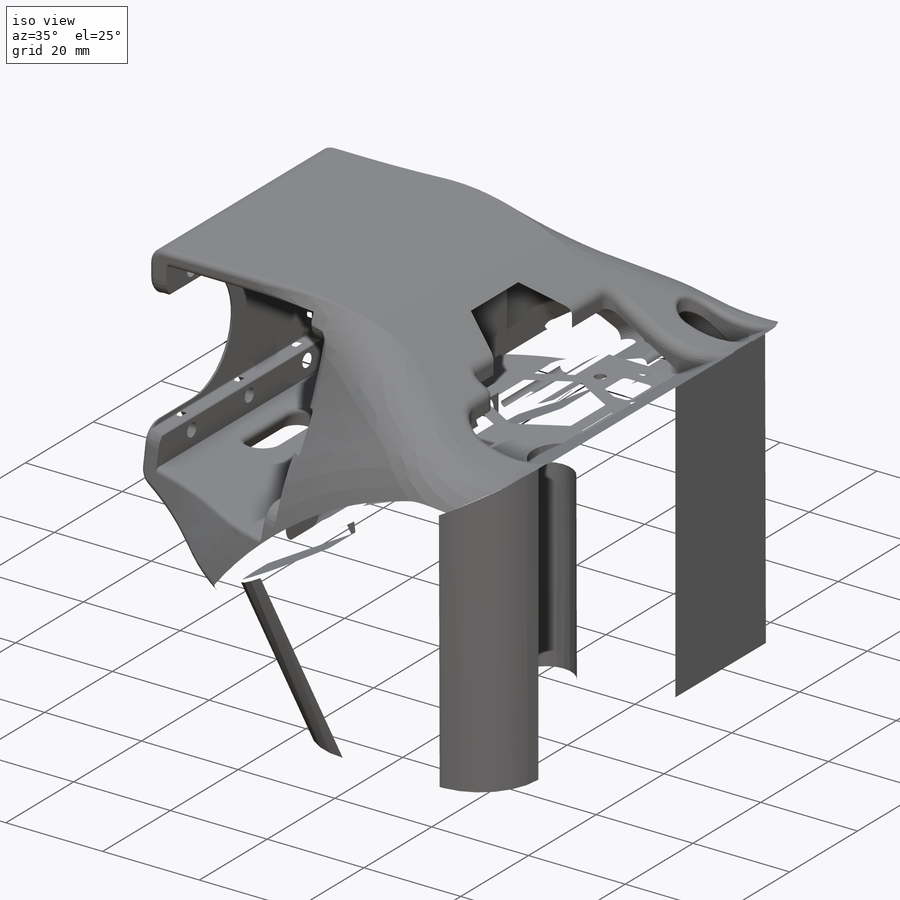
[diagram: iso view]
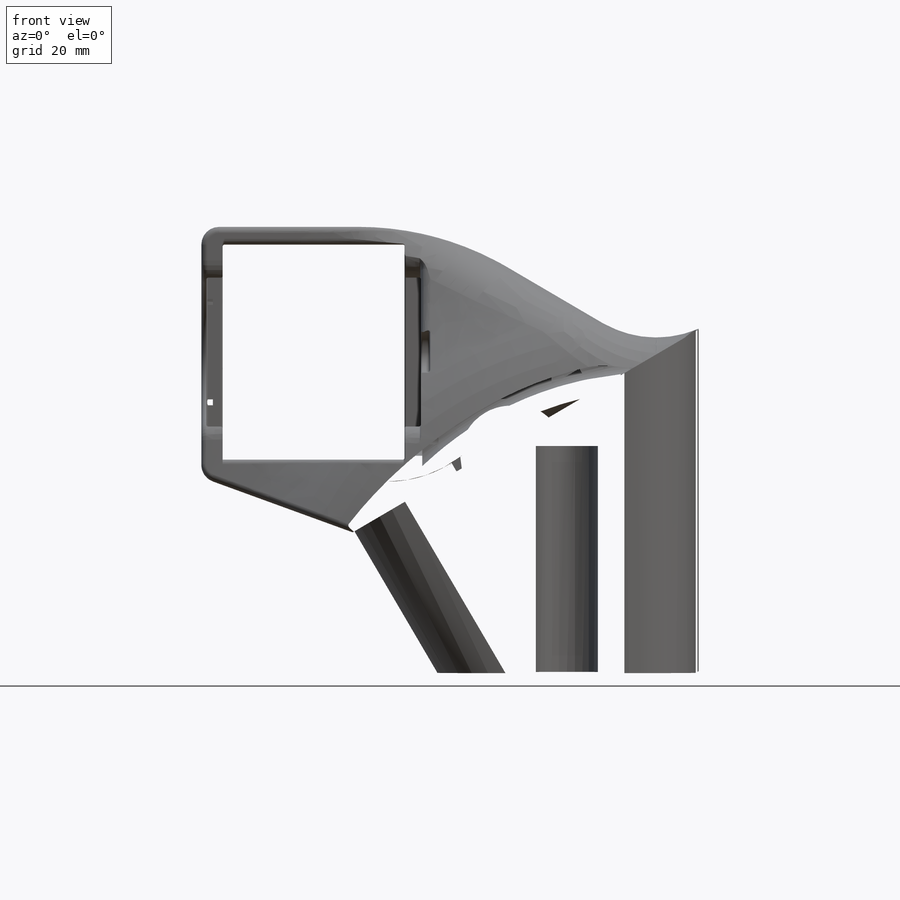
[diagram: front view]
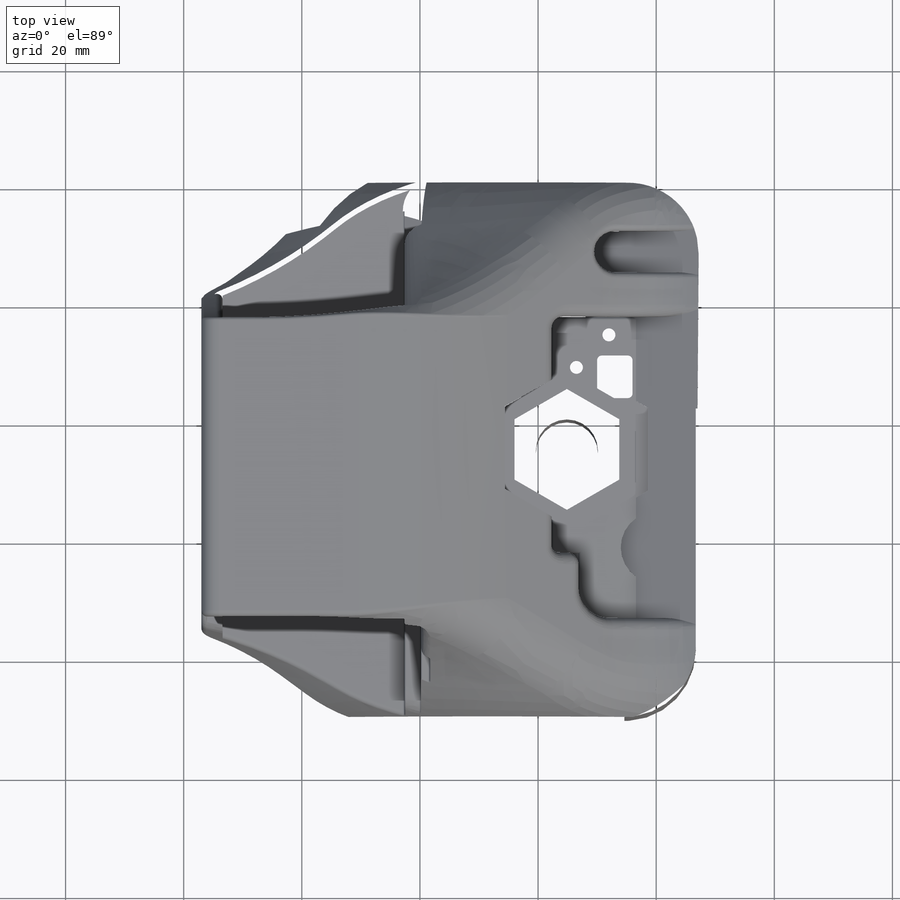
[diagram: top view]
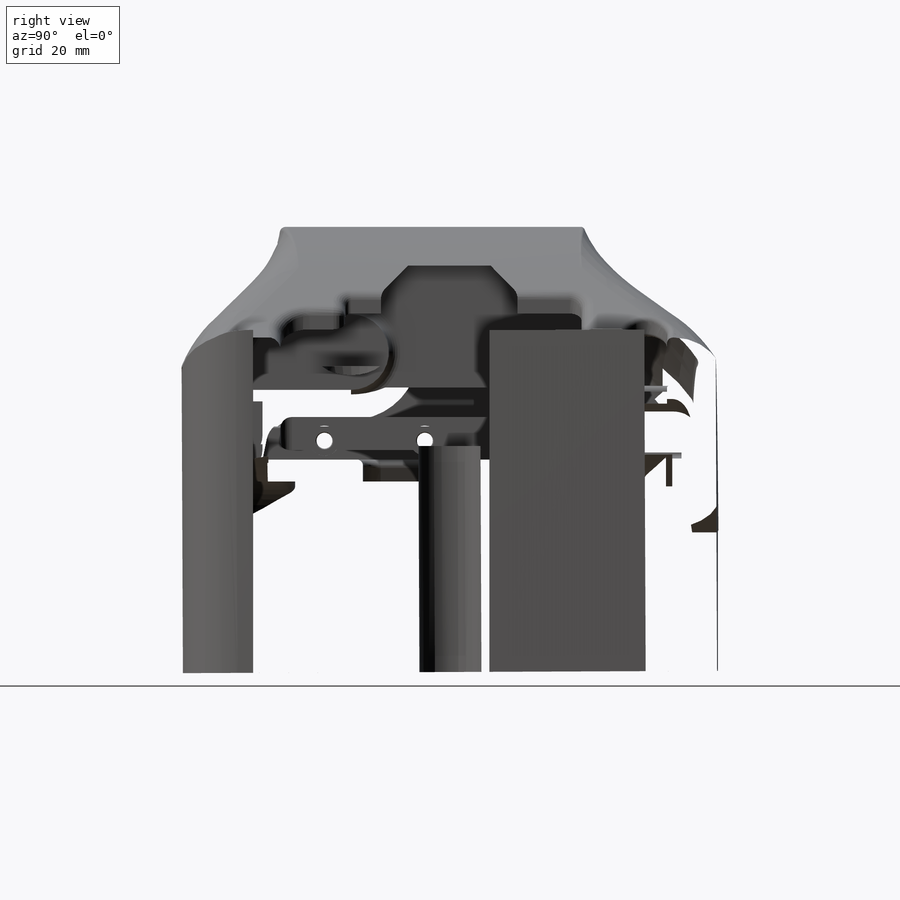
[diagram: right view]
SOLIDWORKS PART (.sldprt)
format: sldprt  version: not decoded by parser v0  size: 17,170,432 bytes
history: native  units: mm
features: sketch x69, fillet x53, cut_extrude x39, plane x23, extrude x11, chamfer x5, hole x4, boolean_combine x2, mirror x2, move_body x2, delete_body x2, material x1, revolve x1, shell x1 + 5 further entries (+21 scaffold rows collapsed; 10 parser-record rows omitted)
feature tree (251):
  scaffold x21  (default folders/planes/origin — collapsed)
  material  "Polyamide"
  plane  "Plan de face"
  plane  "Plan de dessus"
  plane  "Plan de droite"
  plane  "Plan FR07"  Offset=88.5mm
  plane  "Limite Rotation"  Offset=42.8mm
  plane  "Plan MoteurCou"  Offset=4mm
  "Axe2"
  plane  "Plan Rotation Sagittal"
  "Axe3"
  plane  "Plan Moteur Bras"  Offset=67mm
  plane  "PlanMoteruBras2"  Offset=73mm
  sketch  "Esquisse26"  dims[D1=35.4mm D2=1.0mm D3=12.0mm D4=26.3mm D5=39.0mm]
  parser-record x10  (decoder bookkeeping rows leaked as tree rows — omitted from the tree; the rows remain in map.json)
  sketch  "Esquisse4"  dims[D1=2.0mm D2=3.0mm D3=11.5mm]
  revolve  "Révolution2"  Angle=100deg
  sketch  "Esquisse10"  dims[D1=30.0mm D2=35.5mm D3=24.4mm D4=35.6mm D5=0.4mm]
  plane  "Plan10"
  plane  "EpaisseurCote"  Offset=4mm
  sketch  "Esquisse12"  dims[D1=23.0mm D2=17.8mm]
  sketch  "Esquisse5"  dims[c1.D1=1.5mm c1.D2=1.5mm c2.D1=3.0mm c2.D2=3.0mm c2.D3=12.0mm c2.D4=50.6mm c3.D1=3.0mm c3.D2=3.0mm]
  sketch  "Esquisse11"  dims[D1=23.0mm]
  cut_extrude  "Enlèv. mat.-Extru.3"  [1 undecoded]
  extrude  "Boss.-Extru.8"  Depth=3mm
  sketch  "Esquisse3D4"
  chamfer  "Chanfrein5"  Distance=3mm Angle=45deg
  boolean_combine  "Combiner3"
  sketch  "Esquisse3D5"
  fillet  "Congé3"  Radius=50mm
  fillet  "Congé4"  Radius=50mm
  fillet  "Congé5"  Radius=30mm
  cut_extrude  "Enlèv. mat.-Extru.4"  Depth=33.3mm
  sketch  "Esquisse49"  dims[D1=6.0mm D2=1.5mm D3=0.4mm]
  sketch  "Esquisse17"
  cut_extrude  "Enlèv. mat.-Extru.6"  [1 undecoded]
  cut_extrude  "Enlèv. mat.-Extru.5"  Depth=13mm
  cut_extrude  "Enlèv. mat.-Extru.11"  [1 undecoded]
  sketch  "Esquisse50"
  cut_extrude  "Enlèv. mat.-Extru.23"  [1 undecoded]
  sketch  "Esquisse15"  dims[D8=2.7mm D1=2.8mm D2=30.0mm D3=4.5mm D4=17.0mm D5=17.0mm D6=17.0mm D7=40.3mm]
  sketch  "Esquisse27"  dims[D1=4.0mm D2=15.0mm D3=26.0mm]
  cut_extrude  "Enlèv. mat.-Extru.12"  Depth=6mm
  plane  "Plan15"  Offset=10mm
  shell  "Coque12"  Thickness=3mm
  chamfer  "Chanfrein6"  Distance=10mm Angle=48deg
  chamfer  "Chanfrein2"  Distance=8mm Angle=52deg
  chamfer  "Chanfrein3"  Distance=5mm Angle=56deg
  fillet  "Congé58"  Radius=32mm
  fillet  "Congé59"  Radius=4mm
  fillet  "Congé27"  Radius=4mm
  fillet  "Congé60"  Radius=2mm
  fillet  "Congé61"  Radius=2mm
  plane  "Plan16"  Offset=10mm
  fillet  "Congé13"  Radius=3mm
  fillet  "Congé16"  Radius=4mm
  fillet  "Congé18"  Radius=1mm
  fillet  "Congé19"  Radius=5mm
  fillet  "Congé20"  Radius=1mm
  fillet  "Congé15"  Radius=0.3mm
  fillet  "Congé17"  Radius=2mm
  hole  "Chambrage pour vis à tête hexagonale M2.52"  Diameter=2.7mm Depth=15mm
  sketch  "Esquisse14"
  sketch  "Esquisse13"  dims[hole-wizard template sketch: 27 standard entries collapsed; hole parameters kept: c8.Profondeur du perçage=15.0mm c8.Diamètre du chambrage=5.1mm c8.Profondeur du chambrage=8.35mm c8.Diamètre du fraisage milieu=3.0mm c8.D6=~5.388154mm c8.Angle du fraisage milieu=90.0deg c8.D7=~14.816244mm c8.Angle de pointe=118.0deg]
  hole  "Chambrage pour vis à tête hexagonale M2.51"  Diameter=2.7mm Depth=15mm
  sketch  "Esquisse19"
  sketch  "Esquisse18"  dims[hole-wizard template sketch: 27 standard entries collapsed; hole parameters kept: c8.Profondeur du perçage=15.0mm c8.Diamètre du chambrage=5.1mm c8.Profondeur du chambrage=8.35mm c8.Diamètre du fraisage milieu=3.0mm c8.D6=~5.388154mm c8.Angle du fraisage milieu=90.0deg c8.D7=~14.816244mm c8.Angle de pointe=118.0deg]
  fillet  "Congé29"  Radius=2mm
  sketch  "Esquisse52"
  sketch  "Esquisse34"  dims[c1.D1=5.0mm c1.D2=13.0mm c1.D3=1.5mm c1.D4=5.0mm c2.D1=1.2mm c2.D3=6.0mm]
  cut_extrude  "Enlèv. mat.-Extru.14"  [1 undecoded]
  sketch  "Esquisse45"  dims[D1=12.0mm D2=6.0mm D3=5.0mm D4=5.0mm]
  sketch  "Esquisse46"
  cut_extrude  "Enlèv. mat.-Extru.20"  [1 undecoded]
  fillet  "Congé54"  Radius=1mm
  fillet  "Congé38"  Radius=1mm
  fillet  "Congé39"  Radius=1mm
  fillet  "Congé66"  Radius=1mm
  mirror  "Symétrie4"
  fillet  "Congé30"  Radius=18mm
  sketch  "Esquisse20"  dims[c1.D1=16.0mm c1.D2=2.0mm c1.D4=~7.093654mm c2.D4=60.0deg c2.D3=8.0]
  sketch  "Esquisse21"  dims[D1=8.25mm]
  cut_extrude  "Enlèv. mat.-Extru.7"  [1 undecoded]
  hole  "CBORE for M2 Hex Socket Head Cap Screw1"  Diameter=2.2mm Depth=94.5mm
  sketch  "Esquisse24"
  sketch  "Esquisse23"  dims[hole-wizard template sketch: 42 standard entries collapsed; hole parameters kept: c12.Profondeur du perçage jusqu'au prochain=94.5mm c12.Diamètre du chambrage=4.2mm c12.Profondeur du chambrage=1.5mm c12.Diamètre du fraisage milieu=2.4mm c12.D6=~5.388154mm c12.Angle du fraisage milieu=90.0deg]
  sketch  "Sketch1"  dims[D1=0.75mm D2=1.0mm]
  cut_extrude  "Cut-Extrude1"  Depth=1mm
  plane  "Plane1"
  mirror  "Mirror1"
  sketch  "Esquisse28"  dims[D7=2.0mm D1=29.5mm D2=27.0mm D4=16.0mm D5=6.5mm D6=8.0mm D3=4.0]
  plane  "Plan11"  Offset=10mm
  hole  "Chambrage pour vis à tête hexagonale M25"  Diameter=2.2mm Depth=41.510282mm
  sketch  "Esquisse32"
  sketch  "Esquisse31"  dims[hole-wizard template sketch: 42 standard entries collapsed; hole parameters kept: c12.Profondeur du perçage jusqu'au prochain=~41.510282mm c12.Diamètre du chambrage=4.0mm c12.Profondeur du chambrage=8.4mm c12.Diamètre du fraisage milieu=2.4mm c12.D6=~5.388154mm c12.Angle du fraisage milieu=90.0deg]
  sketch  "Esquisse33"  dims[D4=12.0mm D1=11.0mm D2=19.7mm D3=20.0mm D5=22.0mm D6=32.5mm]
  cut_extrude  "Enlèv. mat.-Extru.13"  [1 undecoded]
  sketch  "Esquisse38"  dims[D1=5.5mm D2=11.0mm]
  sketch  "Esquisse39"  dims[D1=7.0mm D2=14.0mm]
  fillet  "Congé34"  Radius=2mm
  fillet  "Congé31"  Radius=5mm
  fillet  "Congé35"  Radius=1mm
  fillet  "Congé36"  Radius=2mm
  fillet  "Congé37"  Radius=0.5mm
  "dynamixel_AXseries"
  move_body  "Corps-Déplacer/Copier2"
  "Coïncidente3"
  "Coaxiale3"
  boolean_combine  "Combiner2"
  fillet  "Congé33"  Radius=9mm
  fillet  "Congé32"  Radius=10mm
  cut_extrude  "Enlèv. mat.-Extru.16"  Depth=2mm
  cut_extrude  "Enlèv. mat.-Extru.17"  [1 undecoded]
  sketch  "Esquisse40"  dims[D1=8.0mm D2=30.0mm D3=4.0mm]
  cut_extrude  "Enlèv. mat.-Extru.19"  [1 undecoded]
  fillet  "Congé44"  Radius=2mm
  plane  "Plan12"
  sketch  "Esquisse41"  dims[D1=2.0mm D2=1.7mm D3=4.0mm D4=2.0mm D5=12.0mm]
  extrude  "Boss.-Extru.9"  Depth=0.75mm
  fillet  "Congé46"  Radius=1mm
  fillet  "Congé47"  Radius=0.2mm
  plane  "Plan13"
  plane  "Plan14"  Offset=2mm
  fillet  "Congé52"  Radius=0.5mm
  fillet  "Congé62"  Radius=1mm
  fillet  "Congé63"  Radius=0.5mm
  fillet  "Congé64"  Radius=1mm
  fillet  "Congé65"  Radius=1mm
  sketch  "Esquisse36"  dims[c1.D1=105.0mm c1.D2=27.0mm c1.D3=~36.681358mm c2.D3=20.0deg c2.D4=~39.038592mm c3.D4=25.0deg c3.D3=50.0mm c4.D3=25.0deg c4.D4=50.0mm c5.D4=15.0deg c5.D5=~8.838835mm c6.D5=35.0deg c6.D6=~4.275252mm c7.D6=20.0deg]
  cut_extrude  "Enlèv. mat.-Extru.15"  [1 undecoded]
  fillet  "Congé40"  Radius=2mm
  fillet  "Congé41"  Radius=1mm
  fillet  "Congé42"  Radius=1mm
  fillet  "Congé71"  Radius=1mm
  fillet  "Congé72"  Radius=0.5mm
  chamfer  "Chanfrein4"  Distance=0.5mm Angle=45deg
  plane  "Plan17"
  sketch  "Esquisse53"  dims[c1.D2=3.73mm c1.D3=~6.697081mm c2.D2=~8.179598mm c2.D1=5.0mm]
  cut_extrude  "Enlèv. mat.-Extru.24"  [1 undecoded]
  fillet  "Congé67"  Radius=20mm
  fillet  "Congé68"  Radius=4mm
  fillet  "Congé69"  Radius=5mm
  sketch  "Esquisse58"  dims[c1.D1=50.0mm c1.D2=50.0mm c2.D2=25.0deg c2.D3=5.0mm]
  plane  "Plan18"
  plane  "right_plane"
  sketch  "Esquisse47"  dims[c1.D1=2.2mm c1.D2=~30.619659mm c2.D2=49.0deg]
  cut_extrude  "Enlèv. mat.-Extru.21"  Depth=5mm
  sketch  "Esquisse48"  dims[D1=4.0mm]
  cut_extrude  "Enlèv. mat.-Extru.22"  Depth=2mm
  fillet  "Congé55"  Radius=0.15mm
  move_body  "Partir2"
  delete_body  "Sólido-Eliminar1"
  delete_body  "Sólido-Eliminar2"
  sketch  "Croquis5"
  extrude  "Saliente-Extruir2"  Depth=50mm
  sketch  "Croquis6"  dims[D1=~62.086953mm D2=~42.086953mm]
  cut_extrude  "Cortar-Extruir9"  Depth=98mm
  sketch  "Croquis7"  dims[c1.D1=~41.006908mm c1.D2=~57.006908mm c1.D3=~43.006908mm c1.D4=90.0deg c2.D3=~57.955998mm]
  cut_extrude  "Cortar-Extruir11"  Depth=98mm
  sketch  "Croquis8"  dims[D1=~45.217612mm]
  cut_extrude  "Cortar-Extruir12"  Depth=37mm
  sketch  "Croquis9"
  extrude  "Saliente-Extruir3"  [1 undecoded]
  sketch  "Croquis10"  dims[D1=9.5mm]
  cut_extrude  "Cortar-Extruir14"  [1 undecoded]
  sketch  "Croquis11"  dims[D1=10.2mm]
  cut_extrude  "Cortar-Extruir15"  Depth=7.5mm
  sketch  "Croquis13"  dims[D1=~90.342176mm D2=60.342mm D3=~46.076972mm D4=~46.076972mm]
  extrude  "Saliente-Extruir5"  Depth=4.5mm
  fillet  "Redondeo1"  Radius=12mm
  fillet  "Redondeo2"  Radius=12mm
  fillet  "Redondeo3"  Radius=10mm
  fillet  "Redondeo4"  Radius=10mm
  sketch  "Croquis19"  dims[D1=~4.576115mm]
  sketch  "Croquis20"  dims[D1=13.3mm D2=~5.616196mm]
  extrude  "Saliente-Extruir12"  [1 undecoded]
  cut_extrude  "Cortar-Extruir24"  [1 undecoded]
  sketch  "Croquis21"  dims[D1=14.0mm D2=26.6mm]
  cut_extrude  "Cortar-Extruir25"  Depth=36mm
  sketch  "Croquis22"  dims[D1=10.2mm]
  cut_extrude  "Cortar-Extruir26"  Depth=12mm
  sketch  "Croquis23"
  cut_extrude  "Cortar-Extruir27"  Depth=23mm
  sketch  "Croquis24"
  cut_extrude  "Cortar-Extruir28"  Depth=31mm
  sketch  "Croquis25"
  extrude  "Saliente-Extruir14"  [1 undecoded]
  sketch  "Croquis26"
  cut_extrude  "Cortar-Extruir29"  [1 undecoded]
  sketch  "Croquis30"
  cut_extrude  "Cortar-Extruir30"  Depth=62mm
  sketch  "Croquis33"  dims[D1=10.2mm]
  cut_extrude  "Cortar-Extruir33"  [1 undecoded]
  sketch  "Croquis36"
  extrude  "Saliente-Extruir16"  [1 undecoded]
  sketch  "Croquis37"  dims[D1=5.1mm]
  cut_extrude  "Cortar-Extruir34"  [1 undecoded]
  sketch  "Croquis38"  dims[D1=~8.859969mm D2=8.86mm D3=~8.859969mm]
  cut_extrude  "Cortar-Extruir35"  Depth=13.5mm
  sketch  "Croquis39"
  extrude  "Saliente-Extruir17"  Depth=20mm
  sketch  "Croquis45"  dims[c1.D1=~90.509837mm c1.D2=~28.786003mm c2.D1=40.0mm]
  cut_extrude  "Cortar-Extruir36"  Depth=20.7mm
  sketch  "Croquis47"  dims[c1.D1=~10.409497mm c1.D2=~39.302792mm c2.D1=1.0mm c2.D2=33.0mm c2.D3=39.5mm]
  extrude  "Saliente-Extruir21"  Depth=20.7mm
  sketch  "Croquis48"  dims[c1.D1=~33.266894mm c1.D2=~14.136505mm c2.D1=3.5mm c2.D2=3.5mm c2.D3=3.7mm c2.D4=31.5mm c3.D3=16.8mm c3.D4=16.8mm]
  cut_extrude  "Cortar-Extruir37"  [1 undecoded]
  sketch  "Croquis50"  dims[D1=~13.065254mm]
  plane  "Plano4"
  sketch  "Croquis55"  dims[c1.D1=~25.240608mm c1.D2=~5.510231mm c2.D1=22.0mm c2.D2=8.0mm c2.D3=~2.74093mm c3.D1=~19.277737mm c3.D2=~6.961737mm c4.D1=3.9mm c4.D2=8.0mm c4.D3=22.0mm c4.D4=7.7mm c4.D5=22.0mm]
  cut_extrude  "Cortar-Extruir38"  [1 undecoded]
  sketch  "Croquis57"  dims[c1.D1=~2.289941mm c1.D2=~0.475271mm c2.D1=2.1mm c2.D2=5.2mm c2.D3=2.1mm c2.D4=5.2mm c2.D5=5.2mm]
  cut_extrude  "Cortar-Extruir40"  [1 undecoded]
  sketch  "Croquis59"  dims[D1=6.0mm D2=~1.410693mm]
  cut_extrude  "Cortar-Extruir41"  Depth=1.9mm
  plane  "Plano5"
  sketch  "Croquis61"  dims[c1.D1=~3.06623mm c1.D2=~1.317918mm c2.D1=~4.361363mm]
  extrude  "Saliente-Extruir24"  Depth=5.9mm
  fillet  "Redondeo7"  Radius=1mm
  fillet  "Redondeo8"  Radius=1mm
  fillet  "Redondeo9"  Radius=1mm
  fillet  "Redondeo10"  Radius=1mm
decode coverage: 140 of 191 modeling features carry decoded parameters; 5 rows unclassified (native names shown)
note: ~ marks probable driven/reference dimensions
note: 24 parameter values undecoded
summary: no parameter record found for 24 features; Diameter pulled from absorbed wizard sketch
note: suppression state not decoded; provenance and decode notes live in map.json
